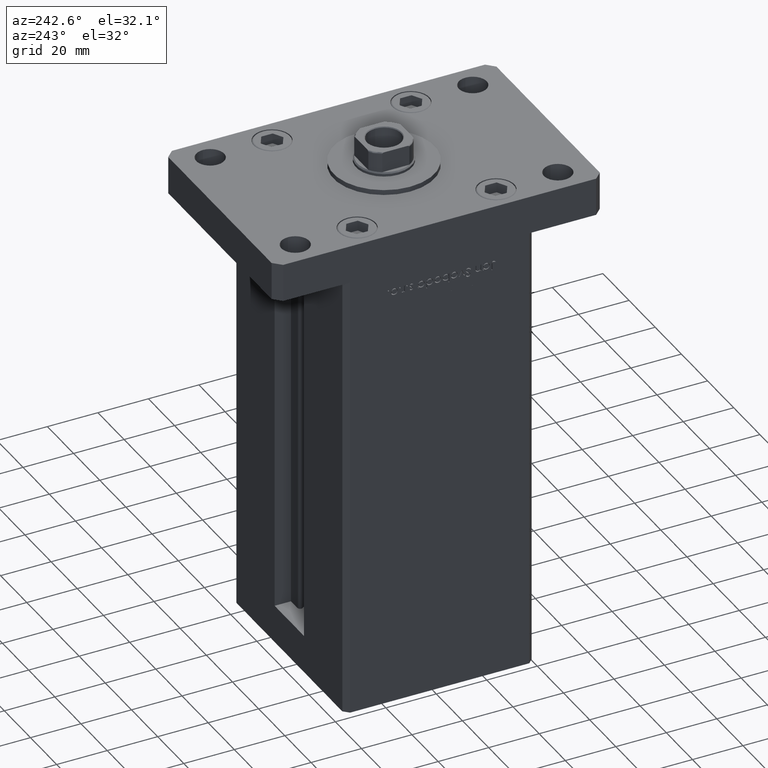
[diagram: clean part render]
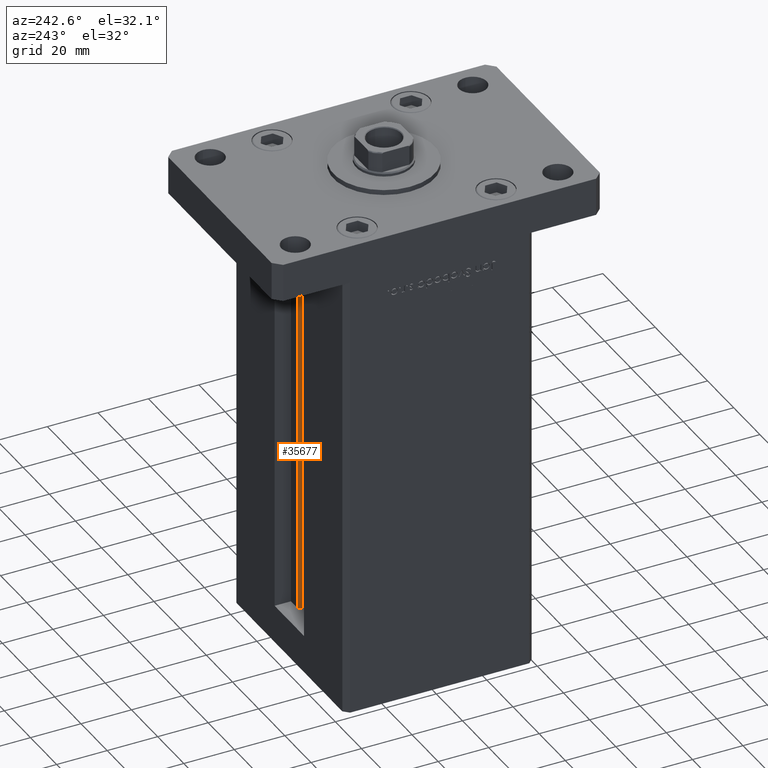
[diagram: same view with one face highlighted and labeled with its STEP entity id]
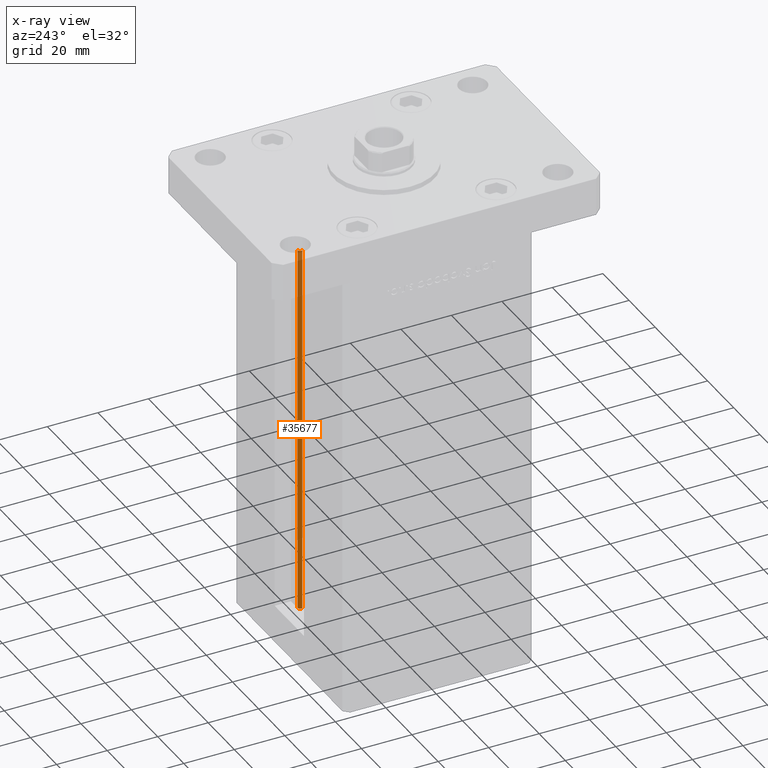
[diagram: x-ray of the same camera — body ghosted, the highlighted face saturated]
A machine part, auxiliary view. The second image highlights one B-rep face of the part: STEP entity #35677.
The next image is the same camera in x-ray: the body ghosted, the highlighted face saturated — about 13% of this face is hidden behind the body in this view.
In plain terms, the highlighted cylindrical surface (edge-blend (fillet) strip) has radius 0.9333 mm, axis along (0, 0, 1).
Its self-contained STEP definition (entity closure, byte-faithful):
#477 = CARTESIAN_POINT ( 'NONE',  ( 6.183333333333999704, 30.99999999999999289, 0.000000000000000000 ) ) ;
#2099 = AXIS2_PLACEMENT_3D ( 'NONE', #28614, #45130, #8016 ) ;
#4367 = DIRECTION ( 'NONE',  ( -0.000000000000000000, -0.000000000000000000, -1.000000000000000000 ) ) ;
#6788 = CARTESIAN_POINT ( 'NONE',  ( 5.375042956467943611, 29.59999999999899245, 0.000000000000000000 ) ) ;
#8016 = DIRECTION ( 'NONE',  ( 1.000000000000000000, 0.000000000000000000, 0.000000000000000000 ) ) ;
#11694 = VECTOR ( 'NONE', #40162, 1000.000000000000000 ) ;
#11941 = EDGE_CURVE ( 'NONE', #42435, #39537, #48564, .T. ) ;
#11978 = LINE ( 'NONE', #52904, #11694 ) ;
#12766 = DIRECTION ( 'NONE',  ( 1.000000000000000000, 0.000000000000000000, 0.000000000000000000 ) ) ;
#13884 = CARTESIAN_POINT ( 'NONE',  ( 5.375042956467944499, 29.59999999999899245, 148.5000000000000000 ) ) ;
#15658 = DIRECTION ( 'NONE',  ( 1.000000000000000000, 0.000000000000000000, 0.000000000000000000 ) ) ;
#16010 = DIRECTION ( 'NONE',  ( -0.000000000000000000, -0.000000000000000000, 1.000000000000000000 ) ) ;
#23141 = VERTEX_POINT ( 'NONE', #25043 ) ;
#24968 = CARTESIAN_POINT ( 'NONE',  ( 6.183333333333999704, 30.06666666666599141, 0.000000000000000000 ) ) ;
#25043 = CARTESIAN_POINT ( 'NONE',  ( 6.183333333333999704, 30.99999999999999289, 148.5000000000000000 ) ) ;
#25197 = ORIENTED_EDGE ( 'NONE', *, *, #37301, .T. ) ;
#25624 = FACE_OUTER_BOUND ( 'NONE', #31309, .T. ) ;
#28173 = ORIENTED_EDGE ( 'NONE', *, *, #50960, .F. ) ;
#28614 = CARTESIAN_POINT ( 'NONE',  ( 6.183333333333999704, 30.06666666666599141, 0.000000000000000000 ) ) ;
#30831 = VERTEX_POINT ( 'NONE', #477 ) ;
#31309 = EDGE_LOOP ( 'NONE', ( #28173, #47230, #51721, #25197 ) ) ;
#31487 = EDGE_CURVE ( 'NONE', #42435, #30831, #40080, .T. ) ;
#31886 = VECTOR ( 'NONE', #16010, 1000.000000000000000 ) ;
#34016 = CYLINDRICAL_SURFACE ( 'NONE', #2099, 0.9333333333340015914 ) ;
#35677 = ADVANCED_FACE ( 'NONE', ( #25624 ), #34016, .T. ) ;
#36260 = CARTESIAN_POINT ( 'NONE',  ( 6.183333333333999704, 30.06666666666599141, 148.5000000000000000 ) ) ;
#36355 = CARTESIAN_POINT ( 'NONE',  ( 5.375042956467943611, 29.59999999999899245, 0.000000000000000000 ) ) ;
#37301 = EDGE_CURVE ( 'NONE', #39537, #23141, #39350, .T. ) ;
#39350 = CIRCLE ( 'NONE', #41080, 0.9333333333340015914 ) ;
#39537 = VERTEX_POINT ( 'NONE', #13884 ) ;
#40080 = CIRCLE ( 'NONE', #46983, 0.9333333333340015914 ) ;
#40162 = DIRECTION ( 'NONE',  ( -0.000000000000000000, -0.000000000000000000, 1.000000000000000000 ) ) ;
#41080 = AXIS2_PLACEMENT_3D ( 'NONE', #36260, #52800, #15658 ) ;
#42435 = VERTEX_POINT ( 'NONE', #6788 ) ;
#45130 = DIRECTION ( 'NONE',  ( -0.000000000000000000, -0.000000000000000000, 1.000000000000000000 ) ) ;
#46983 = AXIS2_PLACEMENT_3D ( 'NONE', #24968, #4367, #12766 ) ;
#47230 = ORIENTED_EDGE ( 'NONE', *, *, #31487, .F. ) ;
#48564 = LINE ( 'NONE', #36355, #31886 ) ;
#50960 = EDGE_CURVE ( 'NONE', #30831, #23141, #11978, .T. ) ;
#51721 = ORIENTED_EDGE ( 'NONE', *, *, #11941, .T. ) ;
#52800 = DIRECTION ( 'NONE',  ( 0.000000000000000000, 0.000000000000000000, -1.000000000000000000 ) ) ;
#52904 = CARTESIAN_POINT ( 'NONE',  ( 6.183333333333999704, 30.99999999999999289, 0.000000000000000000 ) ) ;